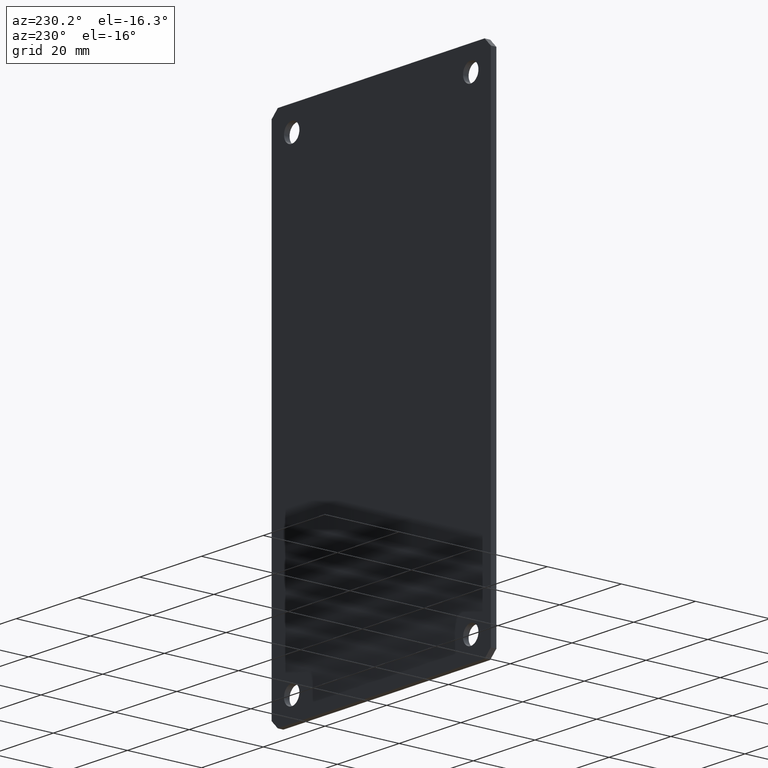
[diagram: clean part render]
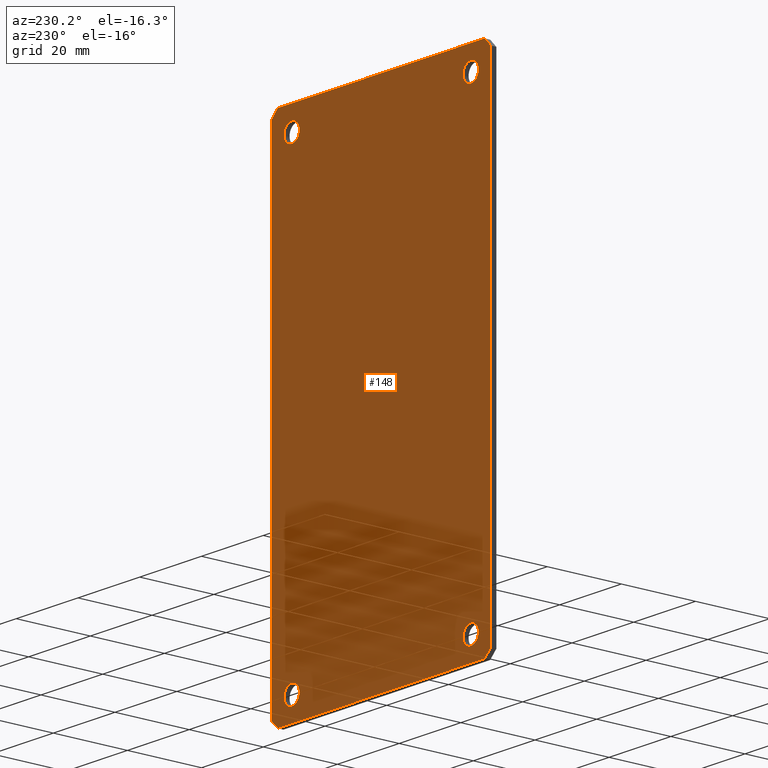
[diagram: same view with one face highlighted and labeled with its STEP entity id]
A machine part, auxiliary view. The second image highlights one B-rep face of the part: STEP entity #148.
In plain terms, the highlighted planar face has unit normal (0, 1, 0).
Its self-contained STEP definition (entity closure, byte-faithful):
#6 = VERTEX_POINT ( 'NONE', #230 ) ;
#7 = ORIENTED_EDGE ( 'NONE', *, *, #52, .T. ) ;
#8 = ORIENTED_EDGE ( 'NONE', *, *, #9, .F. ) ;
#9 = EDGE_CURVE ( 'NONE', #159, #15, #217, .T. ) ;
#10 = ORIENTED_EDGE ( 'NONE', *, *, #161, .F. ) ;
#11 = EDGE_LOOP ( 'NONE', ( #106, #107 ) ) ;
#14 = EDGE_CURVE ( 'NONE', #41, #154, #212, .T. ) ;
#15 = VERTEX_POINT ( 'NONE', #207 ) ;
#21 = VERTEX_POINT ( 'NONE', #280 ) ;
#30 = VERTEX_POINT ( 'NONE', #309 ) ;
#41 = VERTEX_POINT ( 'NONE', #324 ) ;
#52 = EDGE_CURVE ( 'NONE', #6, #112, #328, .T. ) ;
#106 = ORIENTED_EDGE ( 'NONE', *, *, #163, .F. ) ;
#107 = ORIENTED_EDGE ( 'NONE', *, *, #108, .F. ) ;
#108 = EDGE_CURVE ( 'NONE', #30, #164, #365, .T. ) ;
#109 = EDGE_LOOP ( 'NONE', ( #110, #114, #117, #120, #123, #126, #129, #7 ) ) ;
#110 = ORIENTED_EDGE ( 'NONE', *, *, #111, .T. ) ;
#111 = EDGE_CURVE ( 'NONE', #112, #113, #429, .T. ) ;
#112 = VERTEX_POINT ( 'NONE', #425 ) ;
#113 = VERTEX_POINT ( 'NONE', #424 ) ;
#114 = ORIENTED_EDGE ( 'NONE', *, *, #115, .T. ) ;
#115 = EDGE_CURVE ( 'NONE', #113, #116, #348, .T. ) ;
#116 = VERTEX_POINT ( 'NONE', #344 ) ;
#117 = ORIENTED_EDGE ( 'NONE', *, *, #118, .T. ) ;
#118 = EDGE_CURVE ( 'NONE', #116, #119, #343, .T. ) ;
#119 = VERTEX_POINT ( 'NONE', #339 ) ;
#120 = ORIENTED_EDGE ( 'NONE', *, *, #121, .T. ) ;
#121 = EDGE_CURVE ( 'NONE', #119, #122, #393, .T. ) ;
#122 = VERTEX_POINT ( 'NONE', #389 ) ;
#123 = ORIENTED_EDGE ( 'NONE', *, *, #124, .T. ) ;
#124 = EDGE_CURVE ( 'NONE', #122, #125, #388, .T. ) ;
#125 = VERTEX_POINT ( 'NONE', #384 ) ;
#126 = ORIENTED_EDGE ( 'NONE', *, *, #127, .T. ) ;
#127 = EDGE_CURVE ( 'NONE', #125, #128, #383, .T. ) ;
#128 = VERTEX_POINT ( 'NONE', #436 ) ;
#129 = ORIENTED_EDGE ( 'NONE', *, *, #130, .T. ) ;
#130 = EDGE_CURVE ( 'NONE', #128, #6, #437, .T. ) ;
#131 = EDGE_LOOP ( 'NONE', ( #177, #175 ) ) ;
#132 = ORIENTED_EDGE ( 'NONE', *, *, #150, .F. ) ;
#133 = ORIENTED_EDGE ( 'NONE', *, *, #134, .F. ) ;
#134 = EDGE_CURVE ( 'NONE', #21, #152, #441, .T. ) ;
#148 = ADVANCED_FACE ( 'NONE', ( #594, #593, #592, #591, #590 ), #589, .T. ) ;
#149 = EDGE_LOOP ( 'NONE', ( #10, #8 ) ) ;
#150 = EDGE_CURVE ( 'NONE', #152, #21, #587, .T. ) ;
#152 = VERTEX_POINT ( 'NONE', #576 ) ;
#154 = VERTEX_POINT ( 'NONE', #572 ) ;
#159 = VERTEX_POINT ( 'NONE', #504 ) ;
#161 = EDGE_CURVE ( 'NONE', #15, #159, #501, .T. ) ;
#163 = EDGE_CURVE ( 'NONE', #164, #30, #492, .T. ) ;
#164 = VERTEX_POINT ( 'NONE', #487 ) ;
#174 = EDGE_LOOP ( 'NONE', ( #132, #133 ) ) ;
#175 = ORIENTED_EDGE ( 'NONE', *, *, #176, .F. ) ;
#176 = EDGE_CURVE ( 'NONE', #154, #41, #565, .T. ) ;
#177 = ORIENTED_EDGE ( 'NONE', *, *, #14, .F. ) ;
#207 = CARTESIAN_POINT ( 'NONE',  ( 29.00000000000000000, 1.500000000000000000, 58.25000000000000000 ) ) ;
#208 = DIRECTION ( 'NONE',  ( 0.0000000000000000000, 0.0000000000000000000, -1.000000000000000000 ) ) ;
#209 = DIRECTION ( 'NONE',  ( -0.0000000000000000000, 1.000000000000000000, -0.0000000000000000000 ) ) ;
#210 = CARTESIAN_POINT ( 'NONE',  ( 29.00000000000000000, 1.500000000000000000, -60.74999999999999300 ) ) ;
#211 = AXIS2_PLACEMENT_3D ( 'NONE', #210, #209, #208 ) ;
#212 = CIRCLE ( 'NONE', #211, 2.499999999999995100 ) ;
#214 = DIRECTION ( 'NONE',  ( 0.0000000000000000000, 0.0000000000000000000, 1.000000000000000000 ) ) ;
#215 = DIRECTION ( 'NONE',  ( 0.0000000000000000000, 1.000000000000000000, 0.0000000000000000000 ) ) ;
#216 = AXIS2_PLACEMENT_3D ( 'NONE', #229, #215, #214 ) ;
#217 = CIRCLE ( 'NONE', #216, 2.499999999999995100 ) ;
#229 = CARTESIAN_POINT ( 'NONE',  ( 29.00000000000000000, 1.500000000000000000, 60.75000000000000700 ) ) ;
#230 = CARTESIAN_POINT ( 'NONE',  ( 33.49999999999999300, 1.500000000000000000, -67.00000000000000000 ) ) ;
#280 = CARTESIAN_POINT ( 'NONE',  ( -29.00000000000000000, 1.500000000000000000, 63.25000000000000000 ) ) ;
#309 = CARTESIAN_POINT ( 'NONE',  ( -29.00000000000000000, 1.500000000000000000, -58.24999999999998600 ) ) ;
#324 = CARTESIAN_POINT ( 'NONE',  ( 29.00000000000000000, 1.500000000000000000, -63.24999999999998600 ) ) ;
#325 = DIRECTION ( 'NONE',  ( -1.000000000000000000, -0.0000000000000000000, -0.0000000000000000000 ) ) ;
#326 = VECTOR ( 'NONE', #325, 1000.000000000000000 ) ;
#327 = CARTESIAN_POINT ( 'NONE',  ( -33.49999999999999300, 1.500000000000000000, -67.00000000000000000 ) ) ;
#328 = LINE ( 'NONE', #327, #326 ) ;
#339 = CARTESIAN_POINT ( 'NONE',  ( -33.49999999999999300, 1.500000000000000000, 67.00000000000000000 ) ) ;
#340 = DIRECTION ( 'NONE',  ( 0.7071067811865487900, 0.0000000000000000000, 0.7071067811865463500 ) ) ;
#341 = VECTOR ( 'NONE', #340, 1000.000000000000000 ) ;
#342 = CARTESIAN_POINT ( 'NONE',  ( -35.49999999999999300, 1.500000000000000000, 65.00000000000001400 ) ) ;
#343 = LINE ( 'NONE', #342, #341 ) ;
#344 = CARTESIAN_POINT ( 'NONE',  ( -35.49999999999999300, 1.500000000000000000, 65.00000000000001400 ) ) ;
#345 = DIRECTION ( 'NONE',  ( -0.0000000000000000000, -0.0000000000000000000, 1.000000000000000000 ) ) ;
#346 = VECTOR ( 'NONE', #345, 1000.000000000000000 ) ;
#347 = CARTESIAN_POINT ( 'NONE',  ( -35.49999999999999300, 1.500000000000000000, 65.00000000000001400 ) ) ;
#348 = LINE ( 'NONE', #347, #346 ) ;
#362 = DIRECTION ( 'NONE',  ( 0.0000000000000000000, 1.000000000000000000, 0.0000000000000000000 ) ) ;
#363 = CARTESIAN_POINT ( 'NONE',  ( -29.00000000000000000, 1.500000000000000000, -60.74999999999999300 ) ) ;
#364 = AXIS2_PLACEMENT_3D ( 'NONE', #363, #362, #430 ) ;
#365 = CIRCLE ( 'NONE', #364, 2.500000000000002200 ) ;
#380 = DIRECTION ( 'NONE',  ( 0.0000000000000000000, 0.0000000000000000000, -1.000000000000000000 ) ) ;
#381 = VECTOR ( 'NONE', #380, 1000.000000000000000 ) ;
#382 = CARTESIAN_POINT ( 'NONE',  ( 35.49999999999999300, 1.500000000000000000, 65.00000000000001400 ) ) ;
#383 = LINE ( 'NONE', #382, #381 ) ;
#384 = CARTESIAN_POINT ( 'NONE',  ( 35.49999999999999300, 1.500000000000000000, 65.00000000000001400 ) ) ;
#385 = DIRECTION ( 'NONE',  ( 0.7071067811865487900, -0.0000000000000000000, -0.7071067811865463500 ) ) ;
#386 = VECTOR ( 'NONE', #385, 1000.000000000000000 ) ;
#387 = CARTESIAN_POINT ( 'NONE',  ( 35.49999999999999300, 1.500000000000000000, 65.00000000000001400 ) ) ;
#388 = LINE ( 'NONE', #387, #386 ) ;
#389 = CARTESIAN_POINT ( 'NONE',  ( 33.49999999999999300, 1.500000000000000000, 67.00000000000000000 ) ) ;
#390 = DIRECTION ( 'NONE',  ( 1.000000000000000000, 0.0000000000000000000, 0.0000000000000000000 ) ) ;
#391 = VECTOR ( 'NONE', #390, 1000.000000000000000 ) ;
#392 = CARTESIAN_POINT ( 'NONE',  ( -33.49999999999999300, 1.500000000000000000, 67.00000000000000000 ) ) ;
#393 = LINE ( 'NONE', #392, #391 ) ;
#424 = CARTESIAN_POINT ( 'NONE',  ( -35.49999999999999300, 1.500000000000000000, -65.00000000000001400 ) ) ;
#425 = CARTESIAN_POINT ( 'NONE',  ( -33.49999999999999300, 1.500000000000000000, -67.00000000000000000 ) ) ;
#426 = DIRECTION ( 'NONE',  ( -0.7071067811865487900, -0.0000000000000000000, 0.7071067811865463500 ) ) ;
#427 = VECTOR ( 'NONE', #426, 1000.000000000000000 ) ;
#428 = CARTESIAN_POINT ( 'NONE',  ( -35.49999999999999300, 1.500000000000000000, -65.00000000000001400 ) ) ;
#429 = LINE ( 'NONE', #428, #427 ) ;
#430 = DIRECTION ( 'NONE',  ( 0.0000000000000000000, 0.0000000000000000000, 1.000000000000000000 ) ) ;
#436 = CARTESIAN_POINT ( 'NONE',  ( 35.49999999999999300, 1.500000000000000000, -65.00000000000001400 ) ) ;
#437 = LINE ( 'NONE', #445, #442 ) ;
#438 = DIRECTION ( 'NONE',  ( 0.0000000000000000000, 0.0000000000000000000, -1.000000000000000000 ) ) ;
#439 = DIRECTION ( 'NONE',  ( -0.0000000000000000000, 1.000000000000000000, -0.0000000000000000000 ) ) ;
#440 = AXIS2_PLACEMENT_3D ( 'NONE', #444, #439, #438 ) ;
#441 = CIRCLE ( 'NONE', #440, 2.500000000000002200 ) ;
#442 = VECTOR ( 'NONE', #443, 1000.000000000000000 ) ;
#443 = DIRECTION ( 'NONE',  ( -0.7071067811865487900, 0.0000000000000000000, -0.7071067811865463500 ) ) ;
#444 = CARTESIAN_POINT ( 'NONE',  ( -29.00000000000000000, 1.500000000000000000, 60.75000000000000700 ) ) ;
#445 = CARTESIAN_POINT ( 'NONE',  ( 35.49999999999999300, 1.500000000000000000, -65.00000000000001400 ) ) ;
#487 = CARTESIAN_POINT ( 'NONE',  ( -29.00000000000000000, 1.500000000000000000, -63.24999999999998600 ) ) ;
#488 = DIRECTION ( 'NONE',  ( 0.0000000000000000000, 0.0000000000000000000, 1.000000000000000000 ) ) ;
#489 = DIRECTION ( 'NONE',  ( 0.0000000000000000000, 1.000000000000000000, 0.0000000000000000000 ) ) ;
#490 = CARTESIAN_POINT ( 'NONE',  ( -29.00000000000000000, 1.500000000000000000, -60.74999999999999300 ) ) ;
#491 = AXIS2_PLACEMENT_3D ( 'NONE', #490, #489, #488 ) ;
#492 = CIRCLE ( 'NONE', #491, 2.500000000000002200 ) ;
#493 = DIRECTION ( 'NONE',  ( 0.0000000000000000000, 0.0000000000000000000, 1.000000000000000000 ) ) ;
#494 = DIRECTION ( 'NONE',  ( 0.0000000000000000000, 1.000000000000000000, 0.0000000000000000000 ) ) ;
#495 = CARTESIAN_POINT ( 'NONE',  ( 29.00000000000000000, 1.500000000000000000, 60.75000000000000700 ) ) ;
#496 = AXIS2_PLACEMENT_3D ( 'NONE', #495, #494, #493 ) ;
#501 = CIRCLE ( 'NONE', #496, 2.499999999999995100 ) ;
#504 = CARTESIAN_POINT ( 'NONE',  ( 29.00000000000000000, 1.500000000000000000, 63.25000000000000000 ) ) ;
#561 = DIRECTION ( 'NONE',  ( 0.0000000000000000000, 0.0000000000000000000, -1.000000000000000000 ) ) ;
#562 = DIRECTION ( 'NONE',  ( -0.0000000000000000000, 1.000000000000000000, -0.0000000000000000000 ) ) ;
#563 = CARTESIAN_POINT ( 'NONE',  ( 29.00000000000000000, 1.500000000000000000, -60.74999999999999300 ) ) ;
#564 = AXIS2_PLACEMENT_3D ( 'NONE', #563, #562, #561 ) ;
#565 = CIRCLE ( 'NONE', #564, 2.499999999999995100 ) ;
#572 = CARTESIAN_POINT ( 'NONE',  ( 29.00000000000000000, 1.500000000000000000, -58.24999999999998600 ) ) ;
#576 = CARTESIAN_POINT ( 'NONE',  ( -29.00000000000000000, 1.500000000000000000, 58.25000000000000000 ) ) ;
#580 = DIRECTION ( 'NONE',  ( 0.0000000000000000000, 0.0000000000000000000, -1.000000000000000000 ) ) ;
#581 = DIRECTION ( 'NONE',  ( -0.0000000000000000000, 1.000000000000000000, -0.0000000000000000000 ) ) ;
#582 = CARTESIAN_POINT ( 'NONE',  ( -29.00000000000000000, 1.500000000000000000, 60.75000000000000700 ) ) ;
#583 = AXIS2_PLACEMENT_3D ( 'NONE', #582, #581, #580 ) ;
#584 = DIRECTION ( 'NONE',  ( 0.0000000000000000000, -0.0000000000000000000, 1.000000000000000000 ) ) ;
#585 = DIRECTION ( 'NONE',  ( 0.0000000000000000000, 1.000000000000000000, 0.0000000000000000000 ) ) ;
#586 = CARTESIAN_POINT ( 'NONE',  ( 0.0000000000000000000, 1.500000000000000000, -100.4999999999998900 ) ) ;
#587 = CIRCLE ( 'NONE', #583, 2.500000000000002200 ) ;
#588 = AXIS2_PLACEMENT_3D ( 'NONE', #586, #585, #584 ) ;
#589 = PLANE ( 'NONE',  #588 ) ;
#590 = FACE_BOUND ( 'NONE', #174, .T. ) ;
#591 = FACE_BOUND ( 'NONE', #131, .T. ) ;
#592 = FACE_OUTER_BOUND ( 'NONE', #109, .T. ) ;
#593 = FACE_BOUND ( 'NONE', #11, .T. ) ;
#594 = FACE_BOUND ( 'NONE', #149, .T. ) ;